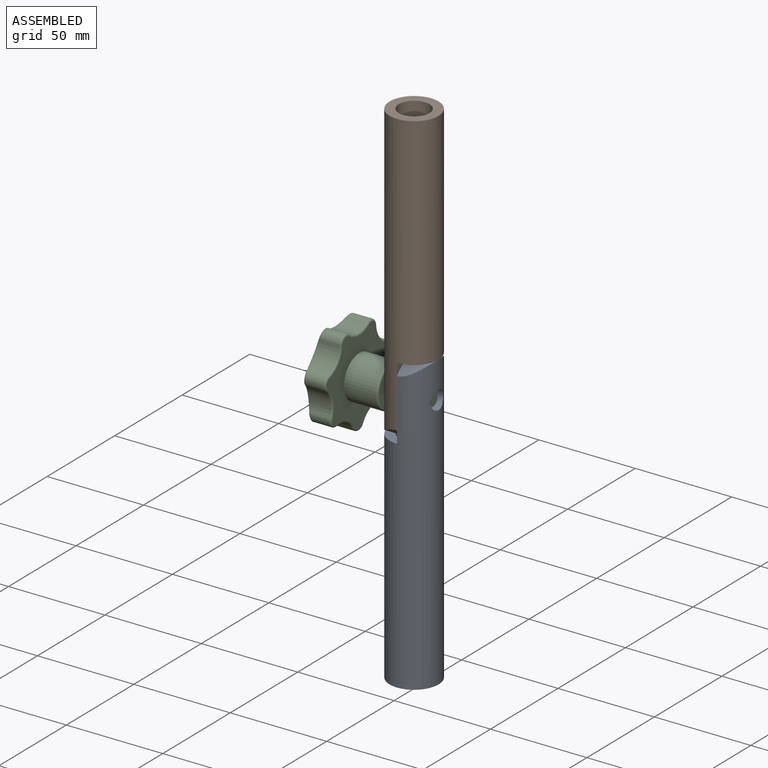
[diagram: assembled view]
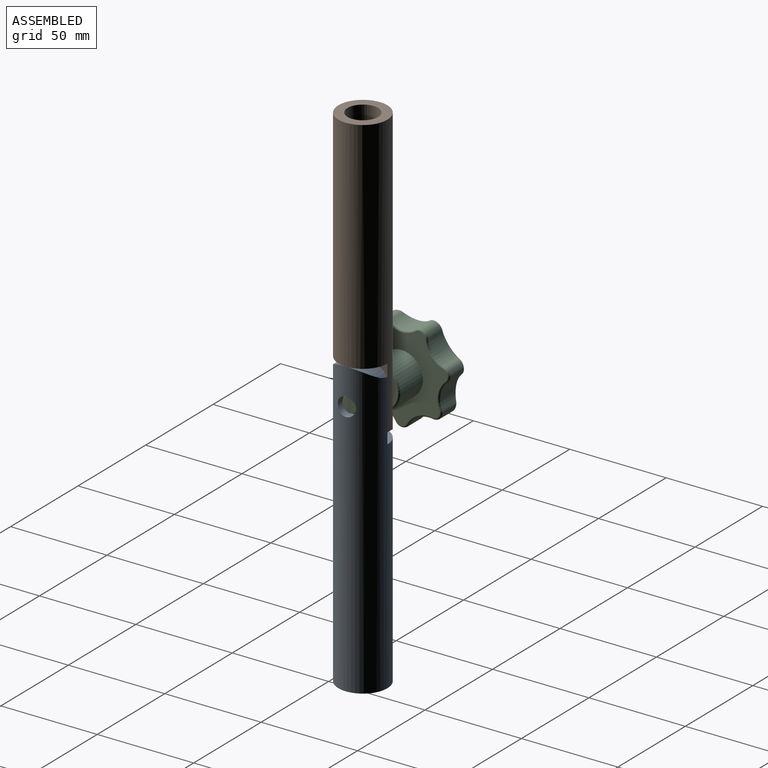
[diagram: assembled view, second angle]
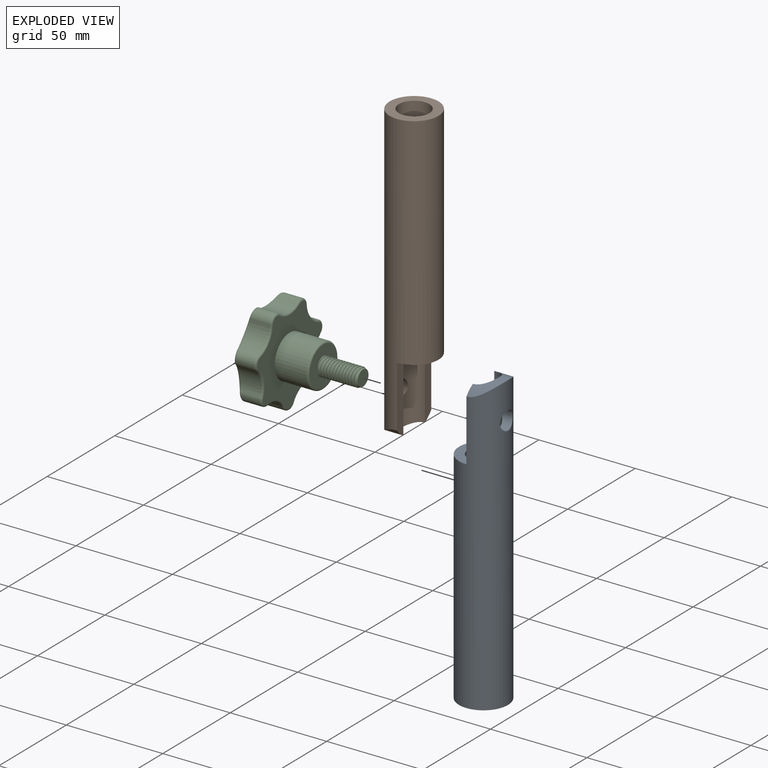
[diagram: exploded view]
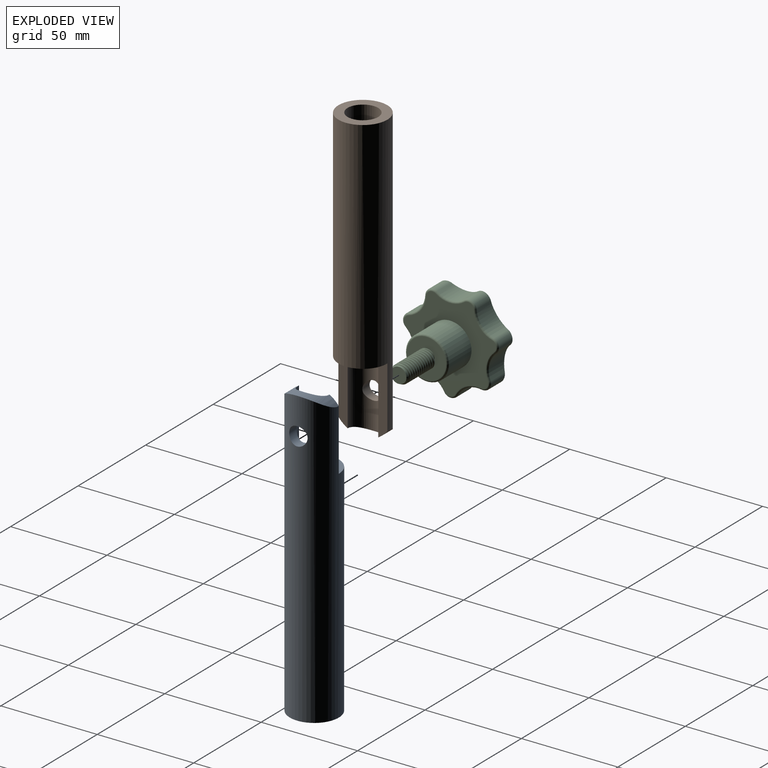
[diagram: exploded view, second angle]
ASSEMBLY  parts=3 mates=2
PART A: 8 faces, bbox 25.4x25.4x152.3 mm
  f0: cylinder r=12.7mm len=152.32mm, axis (0,0,-1), area 10447.5mm2, adj f2,f3,f4,f5,f6,f7
  f1: cylinder r=7.94mm len=152.31mm, axis (0,0,-1), area 6547.5mm2, adj f2,f3,f4,f5,f6,f7
  f2: plane 35.91x4.76mm, normal (1,0,0), area 162.4mm2, adj f0,f1,f5,f7
  f3: plane 35.91x4.76mm, normal (1,0,0), area 162.4mm2, adj f0,f1,f5,f7
  f4: plane 25.4x25.4mm, normal (0,0,1), area 308.8mm2, adj f0,f1
  f5: plane 25.4x12.7mm, normal (0,0,-1), area 154.4mm2, adj f0,f1,f2,f3
  f6: cylinder r=4.76mm len=9.53mm, axis (1,0,0), area 151.9mm2, adj f0,f1
  f7: cylinder r=16.01mm len=25.4mm, axis (1,0,0), area 178.3mm2, adj f0,f1,f2,f3
PART B: same geometry as A
PART C: 108 faces, bbox 50.5x50.6x53.8 mm
  f0: cone r=4.76mm half-angle=25deg, axis (0,0,1), area 22.9mm2, adj f52,f54,f55,f56,f57,f58
  f1: cone r=4.76mm half-angle=25deg, axis (0,0,1), area 2mm2, adj f2,f51
  f2: cylinder r=4.76mm len=9.53mm, axis (0,0,-1), area 9.6mm2, adj f1,f50,f51
  f3: cylinder r=4.76mm len=9.53mm, axis (0,0,-1), area 11.5mm2, adj f47,f48
  f4: cylinder r=4.76mm len=9.53mm, axis (0,0,-1), area 11.5mm2, adj f44,f45
  f5: cylinder r=4.76mm len=9.53mm, axis (0,0,-1), area 11.5mm2, adj f41,f42
  f6: cylinder r=4.76mm len=9.53mm, axis (0,0,-1), area 11.5mm2, adj f38,f39
  f7: cylinder r=4.76mm len=9.53mm, axis (0,0,-1), area 11.5mm2, adj f35,f36
  f8: cylinder r=4.76mm len=9.53mm, axis (0,0,-1), area 11.5mm2, adj f32,f33
  f9: cylinder r=4.76mm len=9.53mm, axis (0,0,-1), area 11.5mm2, adj f29,f30
  f10: cylinder r=4.76mm len=9.53mm, axis (0,0,-1), area 11.5mm2, adj f26,f27
  f11: cylinder r=4.76mm len=9.53mm, axis (0,0,-1), area 11.5mm2, adj f23,f24
  f12: cylinder r=4.76mm len=9.53mm, axis (0,0,-1), area 11.5mm2, adj f17,f21
  f13: cylinder r=4.76mm len=7.86mm, axis (0,0,-1), area 2.1mm2, adj f18,f60
  f14: cylinder r=4.76mm len=9.53mm, axis (0,0,-1), area 10.9mm2, adj f15,f20,f60
  f15: cone r=4.98mm half-angle=60deg, axis (0,-0.16,0.99), area 22.3mm2, adj f14,f16
  f16: cylinder r=4.12mm len=8.24mm, axis (0,-0.16,0.99), area 10.3mm2, adj f15,f17
  f17: cone r=4.12mm half-angle=60deg, axis (0,0.16,-0.99), area 22.1mm2, adj f12,f16
  f18: cone r=4.98mm half-angle=60deg, axis (0,-0.16,0.99), area 7.6mm2, adj f13,f19,f60
  f19: cylinder r=4.12mm len=8.24mm, axis (0,-0.16,0.99), area 5.7mm2, adj f18,f20,f60
  f20: cone r=4.12mm half-angle=60deg, axis (0,0.16,-0.99), area 16.9mm2, adj f14,f19,f60
  f21: cone r=4.98mm half-angle=60deg, axis (0,-0.16,0.99), area 22.1mm2, adj f12,f22
  f22: cylinder r=4.12mm len=8.24mm, axis (0,-0.16,0.99), area 10.3mm2, adj f21,f23
  f23: cone r=4.12mm half-angle=60deg, axis (0,0.16,-0.99), area 22.1mm2, adj f11,f22
  f24: cone r=4.98mm half-angle=60deg, axis (0,-0.16,0.99), area 22.1mm2, adj f11,f25
  f25: cylinder r=4.12mm len=8.24mm, axis (0,-0.16,0.99), area 10.3mm2, adj f24,f26
  f26: cone r=4.12mm half-angle=60deg, axis (0,0.16,-0.99), area 22.1mm2, adj f10,f25
  f27: cone r=4.98mm half-angle=60deg, axis (0,-0.16,0.99), area 22.1mm2, adj f10,f28
  f28: cylinder r=4.12mm len=8.24mm, axis (0,-0.16,0.99), area 10.3mm2, adj f27,f29
  f29: cone r=4.12mm half-angle=60deg, axis (0,0.16,-0.99), area 22.1mm2, adj f9,f28
  f30: cone r=4.98mm half-angle=60deg, axis (0,-0.16,0.99), area 22.1mm2, adj f9,f31
  f31: cylinder r=4.12mm len=8.24mm, axis (0,-0.16,0.99), area 10.3mm2, adj f30,f32
  f32: cone r=4.12mm half-angle=60deg, axis (0,0.16,-0.99), area 22.1mm2, adj f8,f31
  f33: cone r=4.98mm half-angle=60deg, axis (0,-0.16,0.99), area 22.1mm2, adj f8,f34
  f34: cylinder r=4.12mm len=8.24mm, axis (0,-0.16,0.99), area 10.3mm2, adj f33,f35
  f35: cone r=4.12mm half-angle=60deg, axis (0,0.16,-0.99), area 22.1mm2, adj f7,f34
  f36: cone r=4.98mm half-angle=60deg, axis (0,-0.16,0.99), area 22.1mm2, adj f7,f37
  f37: cylinder r=4.12mm len=8.24mm, axis (0,-0.16,0.99), area 10.3mm2, adj f36,f38
  f38: cone r=4.12mm half-angle=60deg, axis (0,0.16,-0.99), area 22.1mm2, adj f6,f37
  f39: cone r=4.98mm half-angle=60deg, axis (0,-0.16,0.99), area 22.1mm2, adj f6,f40
  f40: cylinder r=4.12mm len=8.24mm, axis (0,-0.16,0.99), area 10.3mm2, adj f39,f41
  f41: cone r=4.12mm half-angle=60deg, axis (0,0.16,-0.99), area 22.1mm2, adj f5,f40
  f42: cone r=4.98mm half-angle=60deg, axis (0,-0.16,0.99), area 22.1mm2, adj f5,f43
  f43: cylinder r=4.12mm len=8.24mm, axis (0,-0.16,0.99), area 10.3mm2, adj f42,f44
  f44: cone r=4.12mm half-angle=60deg, axis (0,0.16,-0.99), area 22.1mm2, adj f4,f43
  f45: cone r=4.98mm half-angle=60deg, axis (0,-0.16,0.99), area 22.1mm2, adj f4,f46
  f46: cylinder r=4.12mm len=8.24mm, axis (0,-0.16,0.99), area 10.3mm2, adj f45,f47
  f47: cone r=4.12mm half-angle=60deg, axis (0,0.16,-0.99), area 22.1mm2, adj f3,f46
  f48: cone r=4.98mm half-angle=60deg, axis (0,-0.16,0.99), area 22.1mm2, adj f3,f49
  f49: cylinder r=4.12mm len=8.24mm, axis (0,-0.16,0.99), area 10.3mm2, adj f48,f50
  f50: cone r=4.12mm half-angle=60deg, axis (0,0.16,-0.99), area 22.1mm2, adj f2,f49
  f51: cone r=4.98mm half-angle=60deg, axis (0,-0.16,0.99), area 20.9mm2, adj f1,f2,f53
  f52: cone r=4.12mm half-angle=60deg, axis (0,0.16,-0.99), area 13.2mm2, adj f0,f53,f55
  f53: cylinder r=4.12mm len=8.24mm, axis (0,-0.16,0.99), area 10.3mm2, adj f51,f52
  f54: plane 8.06x8.06mm, normal (0,0,-1), area 51mm2, adj f0
  f55: cylinder r=4.76mm len=5.34mm, axis (0,0,-1), area 0mm2, adj f0,f52
  f56: cone r=4.98mm half-angle=60deg, axis (0,-0.16,0.99), area 5.5mm2, adj f0,f57
  f57: cylinder r=4.12mm len=8.16mm, axis (0,-0.16,0.99), area 3.6mm2, adj f0,f56,f58
  f58: cone r=4.12mm half-angle=60deg, axis (0,0.16,-0.99), area 0.1mm2, adj f0,f57
  f59: cylinder r=11.11mm len=22.23mm, axis (0,0,-1), area 1149.4mm2, adj f62,f105
  f60: plane 20.33x20.33mm, normal (0,0,-1), area 256.4mm2, adj f13,f14,f18,f19,f20,f105
  f61: sphere r=70.11mm, area 1234.7mm2, adj f77,f78,f79,f80,f81,f82,f83,f84
  f62: plane 47.73x46.69mm, normal (0,0,-1), area 1049.4mm2, adj f59,f91,f92,f93,f94,f95,f96,f97
  f63: cylinder r=4.06mm len=9.95mm, axis (0,0,-1), area 83.5mm2, adj f64,f76,f90,f104
  f64: cylinder r=11.86mm len=12.42mm, axis (0,0,-1), area 157.8mm2, adj f63,f65,f89,f102
  f65: cylinder r=4.06mm len=9.95mm, axis (0,0,-1), area 83.5mm2, adj f64,f71,f87,f100
  f66: cylinder r=4.06mm len=9.95mm, axis (0,0,-1), area 83.5mm2, adj f71,f72,f83,f96
  f67: cylinder r=4.06mm len=9.95mm, axis (0,0,-1), area 83.5mm2, adj f72,f73,f79,f92
  f68: cylinder r=4.06mm len=9.95mm, axis (0,0,-1), area 83.5mm2, adj f73,f74,f78,f93
  f69: cylinder r=4.06mm len=9.95mm, axis (0,0,-1), area 83.5mm2, adj f74,f75,f82,f97
  f70: cylinder r=4.06mm len=9.95mm, axis (0,0,-1), area 83.5mm2, adj f75,f76,f86,f101
  f71: cylinder r=11.86mm len=13.44mm, axis (0,0,-1), area 157.8mm2, adj f65,f66,f85,f98
  f72: cylinder r=11.86mm len=11.12mm, axis (0,0,-1), area 157.8mm2, adj f66,f67,f81,f94
  f73: cylinder r=11.86mm len=13.79mm, axis (0,0,-1), area 157.8mm2, adj f67,f68,f77,f91
  f74: cylinder r=11.86mm len=11.12mm, axis (0,0,-1), area 157.8mm2, adj f68,f69,f80,f95
  f75: cylinder r=11.86mm len=13.44mm, axis (0,0,-1), area 157.8mm2, adj f69,f70,f84,f99
  f76: cylinder r=11.86mm len=12.42mm, axis (0,0,-1), area 157.8mm2, adj f63,f70,f88,f103
  f77: bspline ~17.55x3.98mm, area 20.6mm2, adj f61,f73,f78,f79
  f78: bspline ~7.15x4.81mm, area 10.1mm2, adj f61,f68,f77,f80
  f79: bspline ~7.15x4.81mm, area 10.1mm2, adj f61,f67,f77,f81
  f80: bspline ~13.49x10.01mm, area 20.6mm2, adj f61,f74,f78,f82
  f81: bspline ~13.72x11.06mm, area 20.6mm2, adj f61,f72,f79,f83
  f82: bspline ~7.66x3.9mm, area 10.1mm2, adj f61,f69,f80,f84
  f83: bspline ~7.66x3.9mm, area 10.1mm2, adj f61,f66,f81,f85
  f84: bspline ~17.11x6.03mm, area 20.6mm2, adj f61,f75,f82,f86
  f85: bspline ~17.11x6.04mm, area 20.6mm2, adj f61,f71,f83,f87
  f86: bspline ~6.48x5.68mm, area 10.1mm2, adj f61,f70,f84,f88
  f87: bspline ~6.47x5.68mm, area 10.1mm2, adj f61,f65,f85,f89
  f88: bspline ~14.71x8.44mm, area 20.6mm2, adj f61,f76,f86,f90
  f89: bspline ~15.34x7.45mm, area 20.6mm2, adj f61,f64,f87,f90
  f90: bspline ~7.85x3mm, area 10.1mm2, adj f61,f63,f88,f89
  f91: torus R=12.86mm, axis (0,0,-1), area 23.8mm2, adj f62,f73,f92,f93
  f92: torus R=3.06mm, axis (0,0,-1), area 12.4mm2, adj f62,f67,f91,f94
  f93: torus R=3.06mm, axis (0,0,-1), area 12.4mm2, adj f62,f68,f91,f95
  f94: torus R=12.86mm, axis (0,0,-1), area 23.8mm2, adj f62,f72,f92,f96
  f95: torus R=12.86mm, axis (0,0,-1), area 23.8mm2, adj f62,f74,f93,f97
  f96: torus R=3.06mm, axis (0,0,-1), area 12.4mm2, adj f62,f66,f94,f98
  f97: torus R=3.06mm, axis (0,0,-1), area 12.4mm2, adj f62,f69,f95,f99
  f98: torus R=12.86mm, axis (0,0,-1), area 23.8mm2, adj f62,f71,f96,f100
  f99: torus R=12.86mm, axis (0,0,-1), area 23.8mm2, adj f62,f75,f97,f101
  f100: torus R=3.06mm, axis (0,0,-1), area 12.4mm2, adj f62,f65,f98,f102
  f101: torus R=3.06mm, axis (0,0,-1), area 12.4mm2, adj f62,f70,f99,f103
  f102: torus R=12.86mm, axis (0,0,-1), area 23.8mm2, adj f62,f64,f100,f104
  f103: torus R=12.86mm, axis (0,0,-1), area 23.8mm2, adj f62,f76,f101,f104
  f104: torus R=3.06mm, axis (0,0,-1), area 12.4mm2, adj f62,f63,f102,f103
  f105: torus R=10.11mm, axis (0,0,-1), area 106.1mm2, adj f59,f60
  f106: cone r=10.11mm half-angle=45deg, axis (0,0,1), area 36.3mm2, adj f61,f107
  f107: sphere r=70.11mm, area 257.2mm2, adj f106
PLACE A rot(axis=(0,-1,0),180deg) t=(48.6,66.82,70.95)mm
PLACE B rot(axis=(0.12,0.99,-0.12),0deg) t=(48.6,66.82,32.71)mm
PLACE C rot(axis=(-0.58,-0.58,0.58),120deg) t=(47.81,66.82,51.76)mm
MATE fastened A.f2 <-> B.f2  axis (-1,0,0) through (48.6,77.09,49.93)mm
MATE fastened C.f106 <-> B.f6  axis (1,0,0) through (58.13,66.82,51.76)mm
